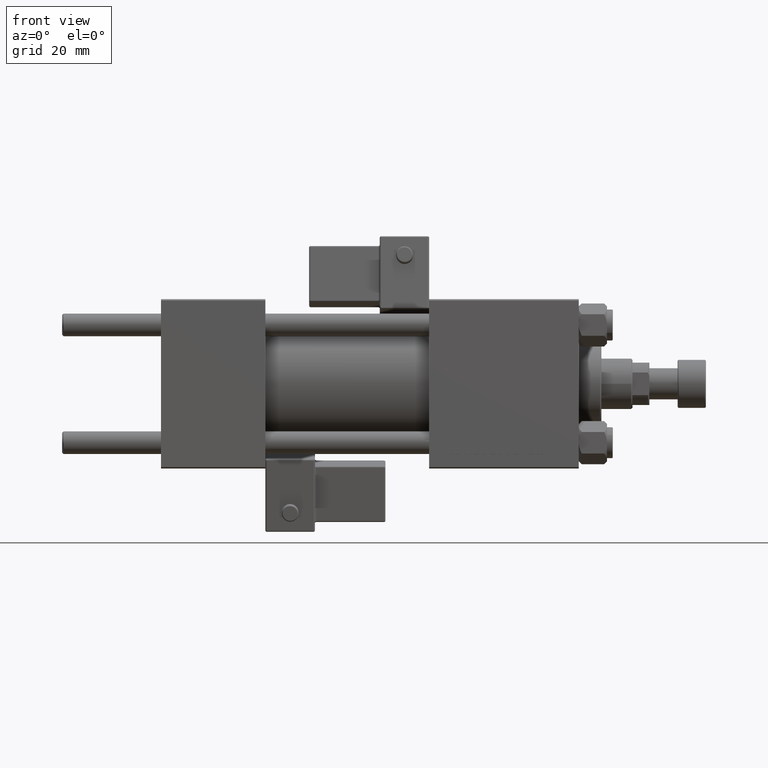
[diagram: clean part render]
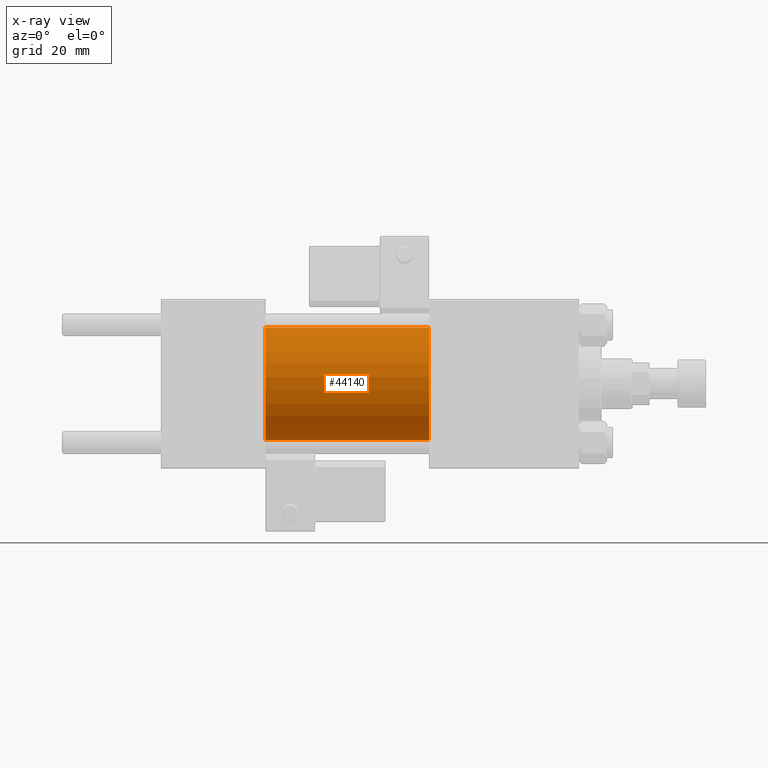
[diagram: x-ray — body ghosted, one internal face saturated and labeled with its STEP entity id]
A machine part, front view, then the same camera in x-ray: the body is ghosted and one INTERNAL B-rep face — a face not visible from any outside direction — is saturated and labeled: STEP entity #44140.
In plain terms, the highlighted cylindrical surface (partial cylindrical patch) has radius 20 mm, axis along (-1, -0, -0).
Its self-contained STEP definition (entity closure, byte-faithful):
#906 = LINE ( 'NONE', #12304, #31070 ) ;
#2289 = LINE ( 'NONE', #42096, #6545 ) ;
#3017 = AXIS2_PLACEMENT_3D ( 'NONE', #45827, #26717, #18225 ) ;
#4434 = ORIENTED_EDGE ( 'NONE', *, *, #42350, .F. ) ;
#6545 = VECTOR ( 'NONE', #51093, 1000.000000000000000 ) ;
#6954 = ORIENTED_EDGE ( 'NONE', *, *, #25333, .T. ) ;
#9780 = CARTESIAN_POINT ( 'NONE',  ( 95.00000000000000000, 0.000000000000000000, 0.000000000000000000 ) ) ;
#10090 = CARTESIAN_POINT ( 'NONE',  ( 37.00000000000000000, 0.000000000000000000, 0.000000000000000000 ) ) ;
#10499 = CYLINDRICAL_SURFACE ( 'NONE', #3017, 20.00000000000000000 ) ;
#10568 = DIRECTION ( 'NONE',  ( 1.000000000000000000, 0.000000000000000000, 0.000000000000000000 ) ) ;
#12304 = CARTESIAN_POINT ( 'NONE',  ( 95.00000000000000000, 0.000000000000000000, 20.00000000000000000 ) ) ;
#13087 = AXIS2_PLACEMENT_3D ( 'NONE', #10090, #18073, #46189 ) ;
#13763 = VERTEX_POINT ( 'NONE', #47031 ) ;
#13915 = CIRCLE ( 'NONE', #13087, 20.00000000000000000 ) ;
#17098 = DIRECTION ( 'NONE',  ( -1.000000000000000000, -0.000000000000000000, -0.000000000000000000 ) ) ;
#18073 = DIRECTION ( 'NONE',  ( 1.000000000000000000, 0.000000000000000000, 0.000000000000000000 ) ) ;
#18225 = DIRECTION ( 'NONE',  ( 0.000000000000000000, 0.000000000000000000, 1.000000000000000000 ) ) ;
#19178 = EDGE_LOOP ( 'NONE', ( #6954, #37693, #50162, #4434 ) ) ;
#20678 = VERTEX_POINT ( 'NONE', #25016 ) ;
#21388 = CARTESIAN_POINT ( 'NONE',  ( 95.00000000000000000, 2.449293598294706119E-15, -20.00000000000000000 ) ) ;
#21620 = AXIS2_PLACEMENT_3D ( 'NONE', #9780, #10568, #50922 ) ;
#22760 = EDGE_CURVE ( 'NONE', #46006, #13763, #13915, .T. ) ;
#24415 = CARTESIAN_POINT ( 'NONE',  ( 37.00000000000000000, 0.000000000000000000, 20.00000000000000000 ) ) ;
#25016 = CARTESIAN_POINT ( 'NONE',  ( 95.00000000000000000, 0.000000000000000000, 20.00000000000000000 ) ) ;
#25333 = EDGE_CURVE ( 'NONE', #20678, #39588, #44480, .T. ) ;
#26717 = DIRECTION ( 'NONE',  ( -1.000000000000000000, -0.000000000000000000, -0.000000000000000000 ) ) ;
#29657 = FACE_OUTER_BOUND ( 'NONE', #19178, .T. ) ;
#31070 = VECTOR ( 'NONE', #17098, 1000.000000000000000 ) ;
#34443 = EDGE_CURVE ( 'NONE', #39588, #13763, #2289, .T. ) ;
#37693 = ORIENTED_EDGE ( 'NONE', *, *, #34443, .T. ) ;
#39588 = VERTEX_POINT ( 'NONE', #21388 ) ;
#42096 = CARTESIAN_POINT ( 'NONE',  ( 95.00000000000000000, 2.449293598294706119E-15, -20.00000000000000000 ) ) ;
#42350 = EDGE_CURVE ( 'NONE', #20678, #46006, #906, .T. ) ;
#44140 = ADVANCED_FACE ( 'NONE', ( #29657 ), #10499, .F. ) ;
#44480 = CIRCLE ( 'NONE', #21620, 20.00000000000000000 ) ;
#45827 = CARTESIAN_POINT ( 'NONE',  ( 95.00000000000000000, 0.000000000000000000, 0.000000000000000000 ) ) ;
#46006 = VERTEX_POINT ( 'NONE', #24415 ) ;
#46189 = DIRECTION ( 'NONE',  ( 0.000000000000000000, 0.000000000000000000, -1.000000000000000000 ) ) ;
#47031 = CARTESIAN_POINT ( 'NONE',  ( 37.00000000000000000, 2.449293598294706119E-15, -20.00000000000000000 ) ) ;
#50162 = ORIENTED_EDGE ( 'NONE', *, *, #22760, .F. ) ;
#50922 = DIRECTION ( 'NONE',  ( 0.000000000000000000, 0.000000000000000000, -1.000000000000000000 ) ) ;
#51093 = DIRECTION ( 'NONE',  ( -1.000000000000000000, -0.000000000000000000, -0.000000000000000000 ) ) ;